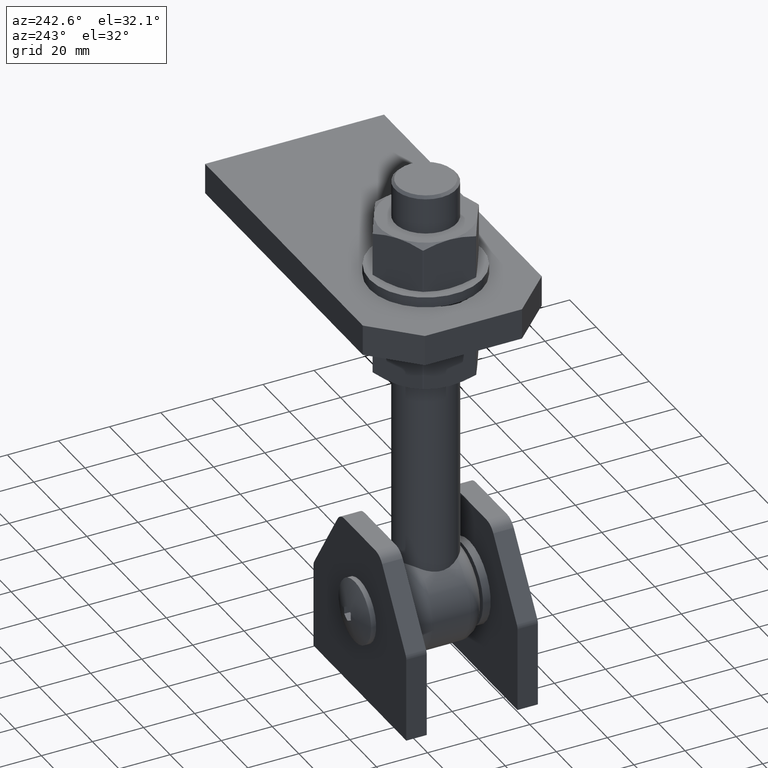
[diagram: clean part render]
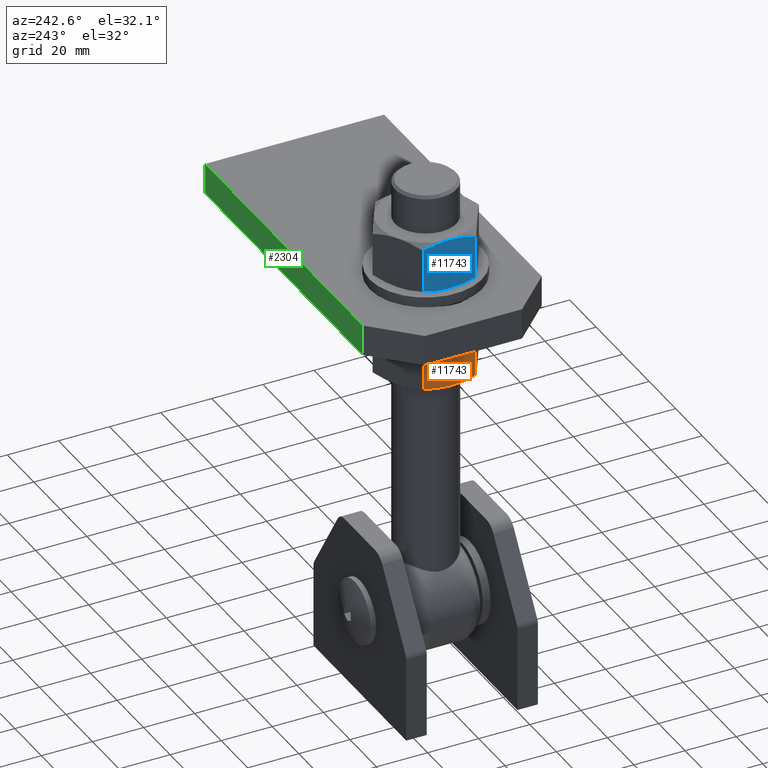
[diagram: same view with three faces highlighted in distinct colors, each labeled with its STEP entity id]
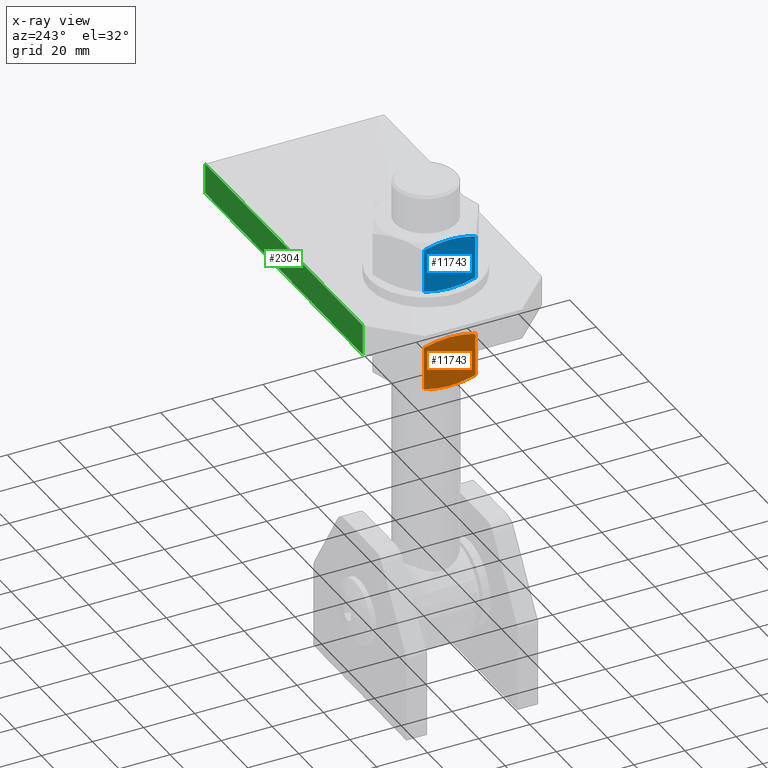
[diagram: x-ray of the same camera — body ghosted, the three highlighted faces saturated]
A machine part, auxiliary view with three faces highlighted in distinct colors.
The next image is the same camera in x-ray (body ghosted, the three faces saturated) — at least one of them is partly hidden behind the body in this view.
Their STEP definitions:

[orange] entity #11743 — the highlighted planar face has unit normal (1, 0, 0).
#778 = EDGE_CURVE ( 'NONE', #3280, #12315, #12628, .T. ) ;
#902 = CARTESIAN_POINT ( 'NONE',  ( -15.58845726811989429, -10.00000000000000000, -8.999999999999998224 ) ) ;
#1007 = DIRECTION ( 'NONE',  ( -0.000000000000000000, 1.000000000000000000, -0.000000000000000000 ) ) ;
#1137 = FACE_OUTER_BOUND ( 'NONE', #8503, .T. ) ;
#1275 = CARTESIAN_POINT ( 'NONE',  ( -11.36331173878490297, -8.941994751156222776, -16.31816672618069219 ) ) ;
#1278 = CARTESIAN_POINT ( 'NONE',  ( -16.44868394276425150, 9.999999999999996447, -7.510043693489946826 ) ) ;
#1328 = CARTESIAN_POINT ( 'NONE',  ( -15.58845726811989429, 10.00000000000000000, -8.999999999999998224 ) ) ;
#1346 = CARTESIAN_POINT ( 'NONE',  ( -10.53664241271066793, 8.474764084930116681, -17.75000000000000000 ) ) ;
#2119 = CARTESIAN_POINT ( 'NONE',  ( -17.29911597758647446, -9.825147480787585152, -6.037052200793663559 ) ) ;
#2325 = PLANE ( 'NONE',  #2790 ) ;
#2534 = CARTESIAN_POINT ( 'NONE',  ( -13.87779855865331236, 9.825147480787585152, -11.96294779920633289 ) ) ;
#2790 = AXIS2_PLACEMENT_3D ( 'NONE', #10447, #14907, #11593 ) ;
#2802 = CARTESIAN_POINT ( 'NONE',  ( -15.58845726811989429, 10.00000000000000000, -8.999999999999998224 ) ) ;
#3280 = VERTEX_POINT ( 'NONE', #2802 ) ;
#3591 = CARTESIAN_POINT ( 'NONE',  ( -12.19598677790577135, -9.325605780329640382, -14.87593125222895196 ) ) ;
#3862 = EDGE_CURVE ( 'NONE', #14538, #3280, #8602, .T. ) ;
#4587 = EDGE_CURVE ( 'NONE', #12315, #12434, #11155, .T. ) ;
#4871 = CARTESIAN_POINT ( 'NONE',  ( -20.64027212352925744, 8.474764084930036745, -0.2499999999997529754 ) ) ;
#4939 = B_SPLINE_CURVE_WITH_KNOTS ( 'NONE', 3,
 ( #6094, #1275, #3591, #7163, #10616, #12835 ),
 .UNSPECIFIED., .F., .F.,
 ( 4, 2, 4 ),
 ( 0.0002977047320976013807, 0.005406626464723698205, 0.01051554819734979405 ),
 .UNSPECIFIED. ) ;
#4951 = CARTESIAN_POINT ( 'NONE',  ( -20.64027212352911533, -8.474764084930116681, -0.2500000000000021094 ) ) ;
#5252 = VERTEX_POINT ( 'NONE', #9297 ) ;
#5830 = CARTESIAN_POINT ( 'NONE',  ( -14.51660190834004993, 9.929390122363201954, -10.85650794150370579 ) ) ;
#6094 = CARTESIAN_POINT ( 'NONE',  ( -10.53664241271052937, -8.474764084930036745, -17.75000000000023803 ) ) ;
#6689 = B_SPLINE_CURVE_WITH_KNOTS ( 'NONE', 3,
 ( #902, #11205, #10188, #12510, #6744, #2119, #15009, #7949, #13732, #12604 ),
 .UNSPECIFIED., .F., .F.,
 ( 4, 2, 2, 2, 4 ),
 ( 0.01051554819734979405, 0.01178791190731937749, 0.01306027561728896440, 0.01560500303722813648, 0.02069445787710647369 ),
 .UNSPECIFIED. ) ;
#6744 = CARTESIAN_POINT ( 'NONE',  ( -16.66031262789973511, -9.929390122363200177, -7.143492058496287100 ) ) ;
#6985 = ORIENTED_EDGE ( 'NONE', *, *, #3862, .T. ) ;
#7163 = CARTESIAN_POINT ( 'NONE',  ( -13.87838744799874036, -9.855426502465718386, -11.96192781293999907 ) ) ;
#7187 = CARTESIAN_POINT ( 'NONE',  ( -12.19278145015596237, 9.324295589834004971, -14.88148304274652922 ) ) ;
#7949 = CARTESIAN_POINT ( 'NONE',  ( -18.98413308608382266, -9.324295589834004971, -3.118516957253468558 ) ) ;
#8054 = DIRECTION ( 'NONE',  ( 0.000000000000000000, -1.000000000000000000, 0.000000000000000000 ) ) ;
#8154 = CARTESIAN_POINT ( 'NONE',  ( -14.73022884769072327, 9.955776413173643036, -10.48649522868289985 ) ) ;
#8234 = CARTESIAN_POINT ( 'NONE',  ( -17.29852708824105179, 9.855426502465720162, -6.038072187059992935 ) ) ;
#8424 = LINE ( 'NONE', #12620, #13698 ) ;
#8503 = EDGE_LOOP ( 'NONE', ( #14842, #8593, #6985, #12830, #14336, #13225 ) ) ;
#8593 = ORIENTED_EDGE ( 'NONE', *, *, #10152, .T. ) ;
#8602 = B_SPLINE_CURVE_WITH_KNOTS ( 'NONE', 3,
 ( #4871, #14009, #9539, #8234, #1278, #1328 ),
 .UNSPECIFIED., .F., .F.,
 ( 4, 2, 4 ),
 ( 0.0002977047320975977486, 0.005406626464723697338, 0.01051554819734979405 ),
 .UNSPECIFIED. ) ;
#9297 = CARTESIAN_POINT ( 'NONE',  ( -15.58845726811989429, -10.00000000000000000, -8.999999999999998224 ) ) ;
#9539 = CARTESIAN_POINT ( 'NONE',  ( -18.98092775833401902, 9.325605780329642158, -3.124068747771045373 ) ) ;
#9665 = CARTESIAN_POINT ( 'NONE',  ( -20.64027212352925744, 8.474764084930036745, -0.2499999999997529754 ) ) ;
#10018 = CARTESIAN_POINT ( 'NONE',  ( -10.53664241271052937, -8.474764084930036745, -17.75000000000023803 ) ) ;
#10152 = EDGE_CURVE ( 'NONE', #10417, #14538, #8424, .T. ) ;
#10188 = CARTESIAN_POINT ( 'NONE',  ( -16.01798673103119341, -9.991100823725131974, -8.256033146889851793 ) ) ;
#10417 = VERTEX_POINT ( 'NONE', #4951 ) ;
#10447 = CARTESIAN_POINT ( 'NONE',  ( -10.39230484541326405, 10.00000000000000000, -17.99999999999999645 ) ) ;
#10595 = CARTESIAN_POINT ( 'NONE',  ( -13.45470436724229124, 9.722150001668021346, -12.69576843511748088 ) ) ;
#10607 = VECTOR ( 'NONE', #8054, 1000.000000000000000 ) ;
#10616 = CARTESIAN_POINT ( 'NONE',  ( -14.72823059347553709, -10.00000000000000000, -10.48995630651004518 ) ) ;
#11155 = LINE ( 'NONE', #13881, #10607 ) ;
#11205 = CARTESIAN_POINT ( 'NONE',  ( -15.80269449085430722, -10.00000000000000711, -8.628930245351545736 ) ) ;
#11593 = DIRECTION ( 'NONE',  ( 0.4999999999999998890, 0.000000000000000000, -0.8660254037844385966 ) ) ;
#11609 = EDGE_CURVE ( 'NONE', #5252, #10417, #6689, .T. ) ;
#11743 = ADVANCED_FACE ( 'NONE', ( #1137 ), #2325, .F. ) ;
#11788 = CARTESIAN_POINT ( 'NONE',  ( -15.15892780520859340, 9.991100823725130198, -9.743966853110141102 ) ) ;
#12315 = VERTEX_POINT ( 'NONE', #13114 ) ;
#12434 = VERTEX_POINT ( 'NONE', #10018 ) ;
#12510 = CARTESIAN_POINT ( 'NONE',  ( -16.44668568854905999, -9.955776413173641259, -7.513504771317093045 ) ) ;
#12604 = CARTESIAN_POINT ( 'NONE',  ( -20.64027212352911533, -8.474764084930116681, -0.2500000000000021094 ) ) ;
#12620 = CARTESIAN_POINT ( 'NONE',  ( -20.64027212352911889, 10.00000000000000000, -0.2499999999999967526 ) ) ;
#12628 = B_SPLINE_CURVE_WITH_KNOTS ( 'NONE', 3,
 ( #14072, #12771, #11788, #8154, #5830, #2534, #10595, #7187, #12862, #1346 ),
 .UNSPECIFIED., .F., .F.,
 ( 4, 2, 2, 2, 4 ),
 ( 0.01051554819734979405, 0.01178791190731937923, 0.01306027561728896440, 0.01560500303722813474, 0.02069445787710647716 ),
 .UNSPECIFIED. ) ;
#12771 = CARTESIAN_POINT ( 'NONE',  ( -15.37422004538547959, 10.00000000000000000, -9.371069754648447159 ) ) ;
#12830 = ORIENTED_EDGE ( 'NONE', *, *, #778, .T. ) ;
#12835 = CARTESIAN_POINT ( 'NONE',  ( -15.58845726811989429, -10.00000000000000000, -8.999999999999998224 ) ) ;
#12862 = CARTESIAN_POINT ( 'NONE',  ( -11.36128959266750371, 8.940851841110029952, -16.32166918599635608 ) ) ;
#13114 = CARTESIAN_POINT ( 'NONE',  ( -10.53664241271066793, 8.474764084930116681, -17.75000000000000000 ) ) ;
#13225 = ORIENTED_EDGE ( 'NONE', *, *, #14146, .T. ) ;
#13698 = VECTOR ( 'NONE', #1007, 1000.000000000000000 ) ;
#13732 = CARTESIAN_POINT ( 'NONE',  ( -19.81562494357227422, -8.940851841110031728, -1.678330814003641036 ) ) ;
#13881 = CARTESIAN_POINT ( 'NONE',  ( -10.53664241271066970, 10.00000000000000000, -17.74999999999999645 ) ) ;
#14009 = CARTESIAN_POINT ( 'NONE',  ( -19.81360279745488384, 8.941994751156226329, -1.681833273819299590 ) ) ;
#14072 = CARTESIAN_POINT ( 'NONE',  ( -15.58845726811989429, 10.00000000000000000, -8.999999999999998224 ) ) ;
#14146 = EDGE_CURVE ( 'NONE', #12434, #5252, #4939, .T. ) ;
#14336 = ORIENTED_EDGE ( 'NONE', *, *, #4587, .T. ) ;
#14538 = VERTEX_POINT ( 'NONE', #9665 ) ;
#14842 = ORIENTED_EDGE ( 'NONE', *, *, #11609, .T. ) ;
#14907 = DIRECTION ( 'NONE',  ( 0.8660254037844387076, -0.000000000000000000, 0.4999999999999999445 ) ) ;
#15009 = CARTESIAN_POINT ( 'NONE',  ( -17.72221016899749202, -9.722150001668017794, -5.304231564882515571 ) ) ;

[blue] entity #11743 — the highlighted planar face has unit normal (1, 0, 0).
#778 = EDGE_CURVE ( 'NONE', #3280, #12315, #12628, .T. ) ;
#902 = CARTESIAN_POINT ( 'NONE',  ( -15.58845726811989429, -10.00000000000000000, -8.999999999999998224 ) ) ;
#1007 = DIRECTION ( 'NONE',  ( -0.000000000000000000, 1.000000000000000000, -0.000000000000000000 ) ) ;
#1137 = FACE_OUTER_BOUND ( 'NONE', #8503, .T. ) ;
#1275 = CARTESIAN_POINT ( 'NONE',  ( -11.36331173878490297, -8.941994751156222776, -16.31816672618069219 ) ) ;
#1278 = CARTESIAN_POINT ( 'NONE',  ( -16.44868394276425150, 9.999999999999996447, -7.510043693489946826 ) ) ;
#1328 = CARTESIAN_POINT ( 'NONE',  ( -15.58845726811989429, 10.00000000000000000, -8.999999999999998224 ) ) ;
#1346 = CARTESIAN_POINT ( 'NONE',  ( -10.53664241271066793, 8.474764084930116681, -17.75000000000000000 ) ) ;
#2119 = CARTESIAN_POINT ( 'NONE',  ( -17.29911597758647446, -9.825147480787585152, -6.037052200793663559 ) ) ;
#2325 = PLANE ( 'NONE',  #2790 ) ;
#2534 = CARTESIAN_POINT ( 'NONE',  ( -13.87779855865331236, 9.825147480787585152, -11.96294779920633289 ) ) ;
#2790 = AXIS2_PLACEMENT_3D ( 'NONE', #10447, #14907, #11593 ) ;
#2802 = CARTESIAN_POINT ( 'NONE',  ( -15.58845726811989429, 10.00000000000000000, -8.999999999999998224 ) ) ;
#3280 = VERTEX_POINT ( 'NONE', #2802 ) ;
#3591 = CARTESIAN_POINT ( 'NONE',  ( -12.19598677790577135, -9.325605780329640382, -14.87593125222895196 ) ) ;
#3862 = EDGE_CURVE ( 'NONE', #14538, #3280, #8602, .T. ) ;
#4587 = EDGE_CURVE ( 'NONE', #12315, #12434, #11155, .T. ) ;
#4871 = CARTESIAN_POINT ( 'NONE',  ( -20.64027212352925744, 8.474764084930036745, -0.2499999999997529754 ) ) ;
#4939 = B_SPLINE_CURVE_WITH_KNOTS ( 'NONE', 3,
 ( #6094, #1275, #3591, #7163, #10616, #12835 ),
 .UNSPECIFIED., .F., .F.,
 ( 4, 2, 4 ),
 ( 0.0002977047320976013807, 0.005406626464723698205, 0.01051554819734979405 ),
 .UNSPECIFIED. ) ;
#4951 = CARTESIAN_POINT ( 'NONE',  ( -20.64027212352911533, -8.474764084930116681, -0.2500000000000021094 ) ) ;
#5252 = VERTEX_POINT ( 'NONE', #9297 ) ;
#5830 = CARTESIAN_POINT ( 'NONE',  ( -14.51660190834004993, 9.929390122363201954, -10.85650794150370579 ) ) ;
#6094 = CARTESIAN_POINT ( 'NONE',  ( -10.53664241271052937, -8.474764084930036745, -17.75000000000023803 ) ) ;
#6689 = B_SPLINE_CURVE_WITH_KNOTS ( 'NONE', 3,
 ( #902, #11205, #10188, #12510, #6744, #2119, #15009, #7949, #13732, #12604 ),
 .UNSPECIFIED., .F., .F.,
 ( 4, 2, 2, 2, 4 ),
 ( 0.01051554819734979405, 0.01178791190731937749, 0.01306027561728896440, 0.01560500303722813648, 0.02069445787710647369 ),
 .UNSPECIFIED. ) ;
#6744 = CARTESIAN_POINT ( 'NONE',  ( -16.66031262789973511, -9.929390122363200177, -7.143492058496287100 ) ) ;
#6985 = ORIENTED_EDGE ( 'NONE', *, *, #3862, .T. ) ;
#7163 = CARTESIAN_POINT ( 'NONE',  ( -13.87838744799874036, -9.855426502465718386, -11.96192781293999907 ) ) ;
#7187 = CARTESIAN_POINT ( 'NONE',  ( -12.19278145015596237, 9.324295589834004971, -14.88148304274652922 ) ) ;
#7949 = CARTESIAN_POINT ( 'NONE',  ( -18.98413308608382266, -9.324295589834004971, -3.118516957253468558 ) ) ;
#8054 = DIRECTION ( 'NONE',  ( 0.000000000000000000, -1.000000000000000000, 0.000000000000000000 ) ) ;
#8154 = CARTESIAN_POINT ( 'NONE',  ( -14.73022884769072327, 9.955776413173643036, -10.48649522868289985 ) ) ;
#8234 = CARTESIAN_POINT ( 'NONE',  ( -17.29852708824105179, 9.855426502465720162, -6.038072187059992935 ) ) ;
#8424 = LINE ( 'NONE', #12620, #13698 ) ;
#8503 = EDGE_LOOP ( 'NONE', ( #14842, #8593, #6985, #12830, #14336, #13225 ) ) ;
#8593 = ORIENTED_EDGE ( 'NONE', *, *, #10152, .T. ) ;
#8602 = B_SPLINE_CURVE_WITH_KNOTS ( 'NONE', 3,
 ( #4871, #14009, #9539, #8234, #1278, #1328 ),
 .UNSPECIFIED., .F., .F.,
 ( 4, 2, 4 ),
 ( 0.0002977047320975977486, 0.005406626464723697338, 0.01051554819734979405 ),
 .UNSPECIFIED. ) ;
#9297 = CARTESIAN_POINT ( 'NONE',  ( -15.58845726811989429, -10.00000000000000000, -8.999999999999998224 ) ) ;
#9539 = CARTESIAN_POINT ( 'NONE',  ( -18.98092775833401902, 9.325605780329642158, -3.124068747771045373 ) ) ;
#9665 = CARTESIAN_POINT ( 'NONE',  ( -20.64027212352925744, 8.474764084930036745, -0.2499999999997529754 ) ) ;
#10018 = CARTESIAN_POINT ( 'NONE',  ( -10.53664241271052937, -8.474764084930036745, -17.75000000000023803 ) ) ;
#10152 = EDGE_CURVE ( 'NONE', #10417, #14538, #8424, .T. ) ;
#10188 = CARTESIAN_POINT ( 'NONE',  ( -16.01798673103119341, -9.991100823725131974, -8.256033146889851793 ) ) ;
#10417 = VERTEX_POINT ( 'NONE', #4951 ) ;
#10447 = CARTESIAN_POINT ( 'NONE',  ( -10.39230484541326405, 10.00000000000000000, -17.99999999999999645 ) ) ;
#10595 = CARTESIAN_POINT ( 'NONE',  ( -13.45470436724229124, 9.722150001668021346, -12.69576843511748088 ) ) ;
#10607 = VECTOR ( 'NONE', #8054, 1000.000000000000000 ) ;
#10616 = CARTESIAN_POINT ( 'NONE',  ( -14.72823059347553709, -10.00000000000000000, -10.48995630651004518 ) ) ;
#11155 = LINE ( 'NONE', #13881, #10607 ) ;
#11205 = CARTESIAN_POINT ( 'NONE',  ( -15.80269449085430722, -10.00000000000000711, -8.628930245351545736 ) ) ;
#11593 = DIRECTION ( 'NONE',  ( 0.4999999999999998890, 0.000000000000000000, -0.8660254037844385966 ) ) ;
#11609 = EDGE_CURVE ( 'NONE', #5252, #10417, #6689, .T. ) ;
#11743 = ADVANCED_FACE ( 'NONE', ( #1137 ), #2325, .F. ) ;
#11788 = CARTESIAN_POINT ( 'NONE',  ( -15.15892780520859340, 9.991100823725130198, -9.743966853110141102 ) ) ;
#12315 = VERTEX_POINT ( 'NONE', #13114 ) ;
#12434 = VERTEX_POINT ( 'NONE', #10018 ) ;
#12510 = CARTESIAN_POINT ( 'NONE',  ( -16.44668568854905999, -9.955776413173641259, -7.513504771317093045 ) ) ;
#12604 = CARTESIAN_POINT ( 'NONE',  ( -20.64027212352911533, -8.474764084930116681, -0.2500000000000021094 ) ) ;
#12620 = CARTESIAN_POINT ( 'NONE',  ( -20.64027212352911889, 10.00000000000000000, -0.2499999999999967526 ) ) ;
#12628 = B_SPLINE_CURVE_WITH_KNOTS ( 'NONE', 3,
 ( #14072, #12771, #11788, #8154, #5830, #2534, #10595, #7187, #12862, #1346 ),
 .UNSPECIFIED., .F., .F.,
 ( 4, 2, 2, 2, 4 ),
 ( 0.01051554819734979405, 0.01178791190731937923, 0.01306027561728896440, 0.01560500303722813474, 0.02069445787710647716 ),
 .UNSPECIFIED. ) ;
#12771 = CARTESIAN_POINT ( 'NONE',  ( -15.37422004538547959, 10.00000000000000000, -9.371069754648447159 ) ) ;
#12830 = ORIENTED_EDGE ( 'NONE', *, *, #778, .T. ) ;
#12835 = CARTESIAN_POINT ( 'NONE',  ( -15.58845726811989429, -10.00000000000000000, -8.999999999999998224 ) ) ;
#12862 = CARTESIAN_POINT ( 'NONE',  ( -11.36128959266750371, 8.940851841110029952, -16.32166918599635608 ) ) ;
#13114 = CARTESIAN_POINT ( 'NONE',  ( -10.53664241271066793, 8.474764084930116681, -17.75000000000000000 ) ) ;
#13225 = ORIENTED_EDGE ( 'NONE', *, *, #14146, .T. ) ;
#13698 = VECTOR ( 'NONE', #1007, 1000.000000000000000 ) ;
#13732 = CARTESIAN_POINT ( 'NONE',  ( -19.81562494357227422, -8.940851841110031728, -1.678330814003641036 ) ) ;
#13881 = CARTESIAN_POINT ( 'NONE',  ( -10.53664241271066970, 10.00000000000000000, -17.74999999999999645 ) ) ;
#14009 = CARTESIAN_POINT ( 'NONE',  ( -19.81360279745488384, 8.941994751156226329, -1.681833273819299590 ) ) ;
#14072 = CARTESIAN_POINT ( 'NONE',  ( -15.58845726811989429, 10.00000000000000000, -8.999999999999998224 ) ) ;
#14146 = EDGE_CURVE ( 'NONE', #12434, #5252, #4939, .T. ) ;
#14336 = ORIENTED_EDGE ( 'NONE', *, *, #4587, .T. ) ;
#14538 = VERTEX_POINT ( 'NONE', #9665 ) ;
#14842 = ORIENTED_EDGE ( 'NONE', *, *, #11609, .T. ) ;
#14907 = DIRECTION ( 'NONE',  ( 0.8660254037844387076, -0.000000000000000000, 0.4999999999999999445 ) ) ;
#15009 = CARTESIAN_POINT ( 'NONE',  ( -17.72221016899749202, -9.722150001668017794, -5.304231564882515571 ) ) ;

[green] entity #2304 — the highlighted planar face has unit normal (0, -1, 0).
#292 = CARTESIAN_POINT ( 'NONE',  ( -51.49999999999993605, 35.00000000000000000, -6.000000000000000000 ) ) ;
#675 = VERTEX_POINT ( 'NONE', #5588 ) ;
#921 = CARTESIAN_POINT ( 'NONE',  ( 67.50000000000000000, 35.00000000000000000, -6.000000000000000000 ) ) ;
#1111 = VECTOR ( 'NONE', #4514, 1000.000000000000000 ) ;
#1252 = VERTEX_POINT ( 'NONE', #292 ) ;
#1304 = DIRECTION ( 'NONE',  ( 0.000000000000000000, -0.000000000000000000, -1.000000000000000000 ) ) ;
#2200 = CARTESIAN_POINT ( 'NONE',  ( -51.49999999999993605, 35.00000000000000000, 6.000000000000000000 ) ) ;
#2304 = ADVANCED_FACE ( 'NONE', ( #9545 ), #10642, .F. ) ;
#3169 = DIRECTION ( 'NONE',  ( -1.000000000000000000, -0.000000000000000000, -0.000000000000000000 ) ) ;
#3212 = VECTOR ( 'NONE', #3169, 1000.000000000000000 ) ;
#3326 = VECTOR ( 'NONE', #6671, 1000.000000000000000 ) ;
#3448 = EDGE_CURVE ( 'NONE', #5611, #1252, #13341, .T. ) ;
#3499 = LINE ( 'NONE', #5517, #4911 ) ;
#4025 = AXIS2_PLACEMENT_3D ( 'NONE', #7192, #6028, #1304 ) ;
#4306 = CARTESIAN_POINT ( 'NONE',  ( -67.50000000000000000, 35.00000000000000000, -6.000000000000000000 ) ) ;
#4514 = DIRECTION ( 'NONE',  ( -0.000000000000000000, -0.000000000000000000, -1.000000000000000000 ) ) ;
#4837 = ORIENTED_EDGE ( 'NONE', *, *, #6989, .F. ) ;
#4911 = VECTOR ( 'NONE', #11440, 1000.000000000000000 ) ;
#5517 = CARTESIAN_POINT ( 'NONE',  ( -51.49999999999993605, 35.00000000000000000, 6.000000000000000000 ) ) ;
#5588 = CARTESIAN_POINT ( 'NONE',  ( 67.50000000000000000, 35.00000000000000000, 6.000000000000000000 ) ) ;
#5611 = VERTEX_POINT ( 'NONE', #921 ) ;
#5614 = CARTESIAN_POINT ( 'NONE',  ( -67.50000000000000000, 35.00000000000000000, 6.000000000000000000 ) ) ;
#6028 = DIRECTION ( 'NONE',  ( 0.000000000000000000, -1.000000000000000000, 0.000000000000000000 ) ) ;
#6671 = DIRECTION ( 'NONE',  ( -1.000000000000000000, -0.000000000000000000, -0.000000000000000000 ) ) ;
#6989 = EDGE_CURVE ( 'NONE', #675, #9756, #8362, .T. ) ;
#7011 = EDGE_CURVE ( 'NONE', #1252, #9756, #3499, .T. ) ;
#7192 = CARTESIAN_POINT ( 'NONE',  ( -67.50000000000000000, 35.00000000000000000, 6.000000000000000000 ) ) ;
#7837 = ORIENTED_EDGE ( 'NONE', *, *, #3448, .T. ) ;
#7962 = ORIENTED_EDGE ( 'NONE', *, *, #14775, .T. ) ;
#8362 = LINE ( 'NONE', #5614, #3326 ) ;
#8923 = ORIENTED_EDGE ( 'NONE', *, *, #7011, .T. ) ;
#9545 = FACE_OUTER_BOUND ( 'NONE', #10878, .T. ) ;
#9756 = VERTEX_POINT ( 'NONE', #2200 ) ;
#10507 = CARTESIAN_POINT ( 'NONE',  ( 67.50000000000000000, 35.00000000000000000, 6.000000000000000000 ) ) ;
#10642 = PLANE ( 'NONE',  #4025 ) ;
#10878 = EDGE_LOOP ( 'NONE', ( #7837, #8923, #4837, #7962 ) ) ;
#11440 = DIRECTION ( 'NONE',  ( 0.000000000000000000, 0.000000000000000000, 1.000000000000000000 ) ) ;
#11631 = LINE ( 'NONE', #10507, #1111 ) ;
#13341 = LINE ( 'NONE', #4306, #3212 ) ;
#14775 = EDGE_CURVE ( 'NONE', #675, #5611, #11631, .T. ) ;